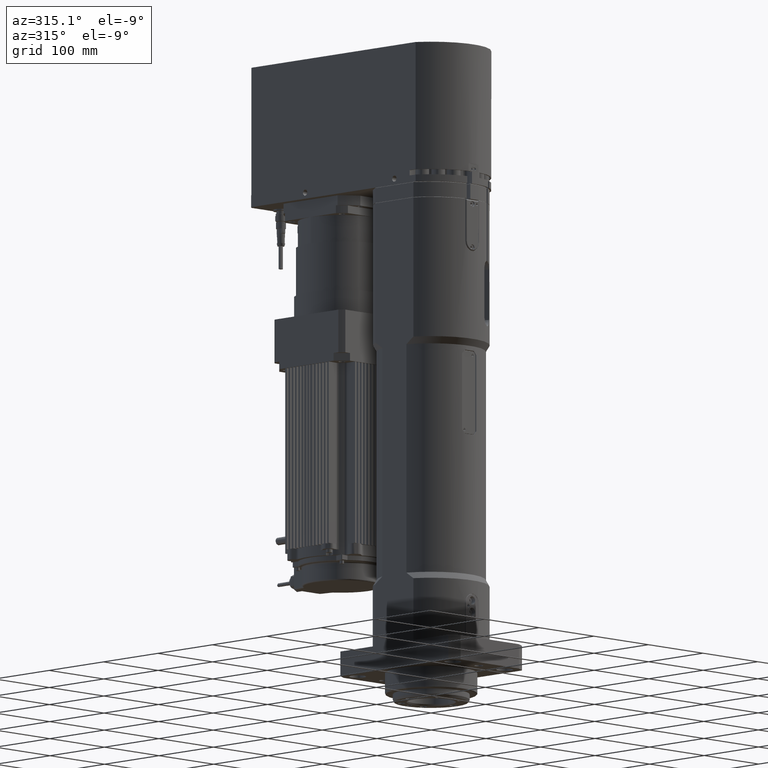
[diagram: clean part render]
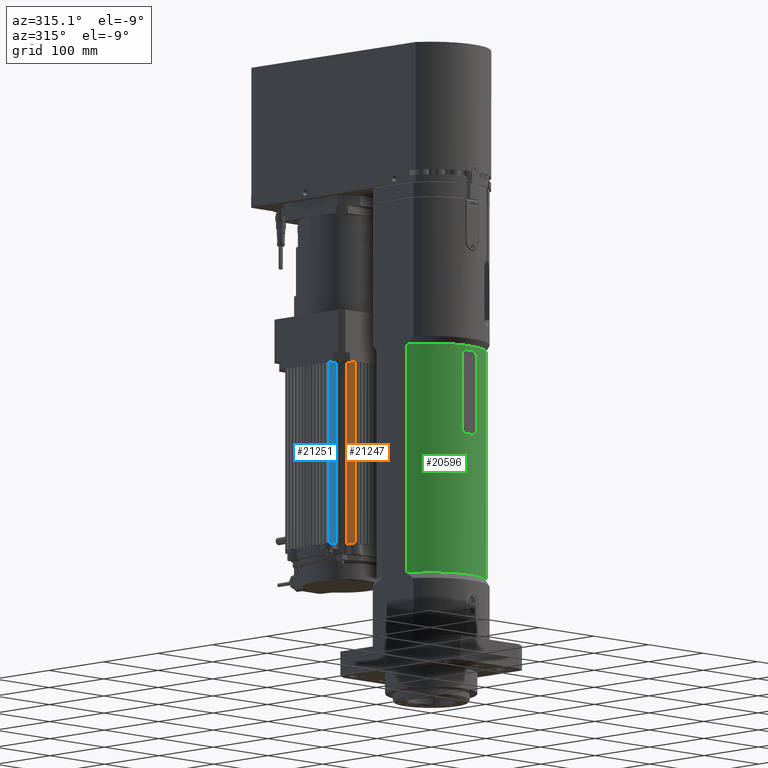
[diagram: same view with three faces highlighted in distinct colors, each labeled with its STEP entity id]
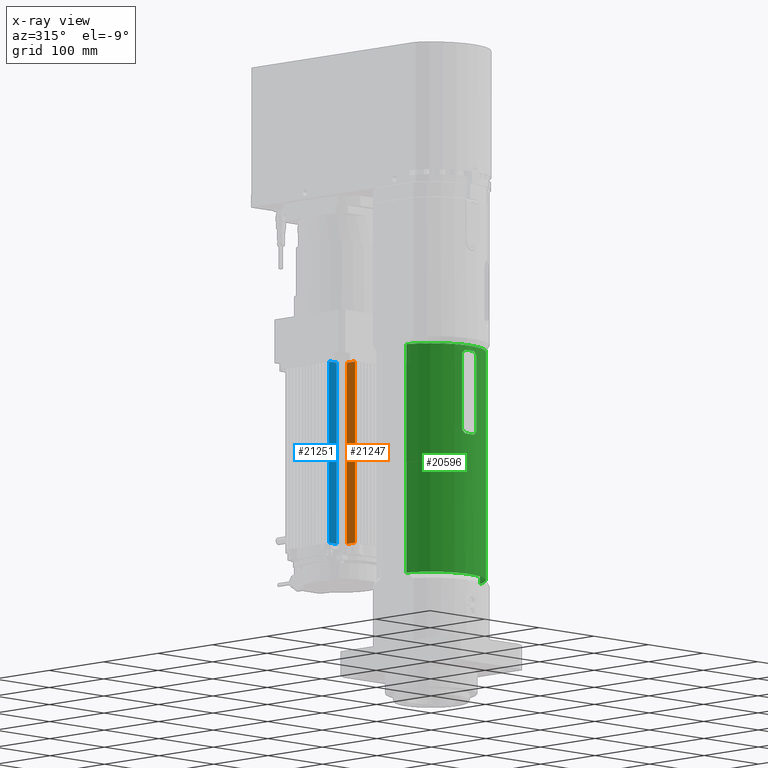
[diagram: x-ray of the same camera — body ghosted, the three highlighted faces saturated]
A machine part, auxiliary view with three faces highlighted in distinct colors.
The next image is the same camera in x-ray (body ghosted, the three faces saturated) — at least one of them is partly hidden behind the body in this view.
Their STEP definitions:

[orange] entity #21247 — the highlighted planar face has unit normal (-1, 0, 0).
#1280=LINE('',#37170,#2954);
#1281=LINE('',#37173,#2955);
#1284=LINE('',#37180,#2958);
#1619=LINE('',#38024,#3293);
#1620=LINE('',#38027,#3294);
#1621=LINE('',#38028,#3295);
#2954=VECTOR('',#28135,3.91076170316298);
#2955=VECTOR('',#28138,8.5039344657575);
#2958=VECTOR('',#28145,2.28169577186255);
#3293=VECTOR('',#29000,238.);
#3294=VECTOR('',#29003,238.);
#3295=VECTOR('',#29004,14.696391940783);
#5539=FACE_OUTER_BOUND('',#7027,.T.);
#7027=EDGE_LOOP('',(#17598,#17599,#17600,#17601,#17602,#17603));
#9341=VERTEX_POINT('',#36536);
#9574=VERTEX_POINT('',#37168);
#9575=VERTEX_POINT('',#37172);
#9576=VERTEX_POINT('',#37176);
#9826=VERTEX_POINT('',#38022);
#9827=VERTEX_POINT('',#38026);
#12090=EDGE_CURVE('',#9574,#9341,#1280,.T.);
#12091=EDGE_CURVE('',#9341,#9575,#1281,.T.);
#12095=EDGE_CURVE('',#9575,#9576,#1284,.T.);
#12520=EDGE_CURVE('',#9826,#9574,#1619,.T.);
#12521=EDGE_CURVE('',#9827,#9576,#1620,.T.);
#12522=EDGE_CURVE('',#9827,#9826,#1621,.T.);
#17598=ORIENTED_EDGE('',*,*,#12521,.T.);
#17599=ORIENTED_EDGE('',*,*,#12095,.F.);
#17600=ORIENTED_EDGE('',*,*,#12091,.F.);
#17601=ORIENTED_EDGE('',*,*,#12090,.F.);
#17602=ORIENTED_EDGE('',*,*,#12520,.F.);
#17603=ORIENTED_EDGE('',*,*,#12522,.F.);
#18921=PLANE('',#23359);
#21247=ADVANCED_FACE('',(#5539),#18921,.T.);
#23359=AXIS2_PLACEMENT_3D('',#38025,#29001,#29002);
#28135=DIRECTION('',(7.64092474937628E-16,1.,2.13267588378177E-53));
#28138=DIRECTION('',(7.64092474937628E-16,1.,2.13267588378177E-53));
#28145=DIRECTION('',(7.64092474937628E-16,1.,2.13267588378177E-53));
#29000=DIRECTION('',(4.6442906133275E-69,2.13267588378177E-53,-1.));
#29001=DIRECTION('center_axis',(-1.,7.64092474937628E-16,1.16513253294586E-68));
#29002=DIRECTION('ref_axis',(7.105427357601E-16,1.,0.));
#29003=DIRECTION('',(4.6442906133275E-69,2.13267588378177E-53,-1.));
#29004=DIRECTION('',(-7.64092474937628E-16,-1.,-2.13267588378177E-53));
#36536=CARTESIAN_POINT('',(-40.,103.910761703164,178.));
#37168=CARTESIAN_POINT('',(-40.,100.000000000001,178.));
#37170=CARTESIAN_POINT('',(-40.,100.000000000001,178.));
#37172=CARTESIAN_POINT('',(-40.,112.414696168921,178.));
#37173=CARTESIAN_POINT('',(-40.,100.000000000001,178.));
#37176=CARTESIAN_POINT('',(-40.,114.696391940784,178.));
#37180=CARTESIAN_POINT('',(-40.,100.000000000001,178.));
#38022=CARTESIAN_POINT('',(-40.,100.000000000001,416.));
#38024=CARTESIAN_POINT('',(-40.,100.000000000001,416.));
#38025=CARTESIAN_POINT('Origin',(-40.,100.000000000001,416.));
#38026=CARTESIAN_POINT('',(-40.,114.696391940784,416.));
#38027=CARTESIAN_POINT('',(-40.,114.696391940784,416.));
#38028=CARTESIAN_POINT('',(-40.,132.000000000001,416.));

[blue] entity #21251 — the highlighted planar face has unit normal (0, -1, -0).
#1291=LINE('',#37204,#2965);
#1292=LINE('',#37206,#2966);
#1293=LINE('',#37209,#2967);
#1624=LINE('',#38040,#3298);
#1625=LINE('',#38043,#3299);
#1626=LINE('',#38044,#3300);
#2965=VECTOR('',#28174,2.28169577186226);
#2966=VECTOR('',#28177,8.50393446575779);
#2967=VECTOR('',#28180,3.91076170316292);
#3298=VECTOR('',#29019,238.);
#3299=VECTOR('',#29022,14.696391940783);
#3300=VECTOR('',#29023,238.);
#5543=FACE_OUTER_BOUND('',#7031,.T.);
#7031=EDGE_LOOP('',(#17624,#17625,#17626,#17627,#17628,#17629));
#9354=VERTEX_POINT('',#36570);
#9582=VERTEX_POINT('',#37198);
#9583=VERTEX_POINT('',#37202);
#9584=VERTEX_POINT('',#37208);
#9830=VERTEX_POINT('',#38038);
#9831=VERTEX_POINT('',#38042);
#12108=EDGE_CURVE('',#9583,#9582,#1291,.T.);
#12109=EDGE_CURVE('',#9582,#9354,#1292,.T.);
#12110=EDGE_CURVE('',#9354,#9584,#1293,.T.);
#12528=EDGE_CURVE('',#9583,#9830,#1624,.T.);
#12529=EDGE_CURVE('',#9831,#9830,#1625,.T.);
#12530=EDGE_CURVE('',#9831,#9584,#1626,.T.);
#17624=ORIENTED_EDGE('',*,*,#12528,.T.);
#17625=ORIENTED_EDGE('',*,*,#12529,.F.);
#17626=ORIENTED_EDGE('',*,*,#12530,.T.);
#17627=ORIENTED_EDGE('',*,*,#12110,.F.);
#17628=ORIENTED_EDGE('',*,*,#12109,.F.);
#17629=ORIENTED_EDGE('',*,*,#12108,.F.);
#18922=PLANE('',#23366);
#21251=ADVANCED_FACE('',(#5543),#18922,.T.);
#23366=AXIS2_PLACEMENT_3D('',#38041,#29020,#29021);
#28174=DIRECTION('',(-1.,-6.97960117929888E-17,-6.13281332467805E-69));
#28177=DIRECTION('',(-1.,-6.97960117929888E-17,-6.13281332467805E-69));
#28180=DIRECTION('',(-1.,-6.97960117929888E-17,-6.13281332467805E-69));
#29019=DIRECTION('',(-4.6442906133275E-69,-2.13267588378177E-53,1.));
#29020=DIRECTION('center_axis',(6.97960117929888E-17,-1.,-2.13267588378177E-53));
#29021=DIRECTION('ref_axis',(-1.,0.,0.));
#29022=DIRECTION('',(1.,6.97960117929888E-17,6.13281332467805E-69));
#29023=DIRECTION('',(4.6442906133275E-69,2.13267588378177E-53,-1.));
#36570=CARTESIAN_POINT('',(-60.0892382968371,124.000000000001,178.));
#37198=CARTESIAN_POINT('',(-51.5853038310793,124.000000000001,178.));
#37202=CARTESIAN_POINT('',(-49.303608059217,124.000000000001,178.));
#37204=CARTESIAN_POINT('',(-48.0234317807464,124.000000000001,178.));
#37206=CARTESIAN_POINT('',(-48.0234317807464,124.000000000001,178.));
#37208=CARTESIAN_POINT('',(-64.,124.000000000001,178.));
#37209=CARTESIAN_POINT('',(-48.0234317807464,124.000000000001,178.));
#38038=CARTESIAN_POINT('',(-49.303608059217,124.000000000001,416.));
#38040=CARTESIAN_POINT('',(-49.303608059217,124.000000000001,416.));
#38041=CARTESIAN_POINT('Origin',(-48.0234317807464,124.000000000001,416.));
#38042=CARTESIAN_POINT('',(-64.,124.000000000001,416.));
#38043=CARTESIAN_POINT('',(-24.0117158903732,124.000000000001,416.));
#38044=CARTESIAN_POINT('',(-64.,124.000000000001,416.));

[green] entity #20596 — the highlighted cylindrical surface (partial cylindrical patch) has radius 71 mm, axis along (0, 0, 1).
#557=LINE('',#34087,#2231);
#561=LINE('',#34120,#2235);
#584=LINE('',#34264,#2258);
#585=LINE('',#34265,#2259);
#2231=VECTOR('',#25480,100.);
#2235=VECTOR('',#25494,100.);
#2258=VECTOR('',#25613,300.);
#2259=VECTOR('',#25614,300.);
#3520=B_SPLINE_CURVE_WITH_KNOTS('',3,(#34090,#34091,#34092,#34093,#34094,
#34095,#34096,#34097,#34098,#34099),.UNSPECIFIED.,.F.,.F.,(4,2,2,2,4),(0.,
0.188411802386185,0.376823604772369,0.567103602888338,0.757383601004307),
 .UNSPECIFIED.);
#3521=B_SPLINE_CURVE_WITH_KNOTS('',3,(#34107,#34108,#34109,#34110,#34111,
#34112,#34113,#34114,#34115,#34116),.UNSPECIFIED.,.F.,.F.,(4,2,2,2,4),(0.754765466642834,
0.945045464758803,1.13532546287477,1.32373726526096,1.51214906764714),
 .UNSPECIFIED.);
#3522=B_SPLINE_CURVE_WITH_KNOTS('',3,(#34124,#34125,#34126,#34127,#34128,
#34129,#34130,#34131,#34132,#34133),.UNSPECIFIED.,.F.,.F.,(4,2,2,2,4),(1.51214906764713,
1.70056087003331,1.8889726724195,2.07925267053546,2.26953266865143),
 .UNSPECIFIED.);
#3523=B_SPLINE_CURVE_WITH_KNOTS('',3,(#34140,#34141,#34142,#34143,#34144,
#34145,#34146,#34147,#34148,#34149),.UNSPECIFIED.,.F.,.F.,(4,2,2,2,4),(-0.757383601004301,
-0.567103602888332,-0.376823604772362,-0.188411802386181,0.),
 .UNSPECIFIED.);
#3909=FACE_BOUND('',#6247,.T.);
#4223=CYLINDRICAL_SURFACE('',#22181,71.);
#4888=FACE_OUTER_BOUND('',#6246,.T.);
#6246=EDGE_LOOP('',(#14604,#14605,#14606,#14607));
#6247=EDGE_LOOP('',(#14608,#14609,#14610,#14611,#14612,#14613,#14614,#14615));
#7458=CIRCLE('',#22132,71.);
#7459=CIRCLE('',#22137,71.);
#7482=CIRCLE('',#22180,71.);
#7483=CIRCLE('',#22182,71.);
#8697=VERTEX_POINT('',#34083);
#8698=VERTEX_POINT('',#34085);
#8699=VERTEX_POINT('',#34089);
#8700=VERTEX_POINT('',#34102);
#8701=VERTEX_POINT('',#34106);
#8702=VERTEX_POINT('',#34119);
#8703=VERTEX_POINT('',#34123);
#8704=VERTEX_POINT('',#34136);
#8734=VERTEX_POINT('',#34251);
#8735=VERTEX_POINT('',#34255);
#8736=VERTEX_POINT('',#34261);
#8737=VERTEX_POINT('',#34262);
#10850=EDGE_CURVE('',#8697,#8698,#557,.T.);
#10851=EDGE_CURVE('',#8697,#8699,#3520,.T.);
#10854=EDGE_CURVE('',#8700,#8699,#7458,.T.);
#10855=EDGE_CURVE('',#8700,#8701,#3521,.T.);
#10857=EDGE_CURVE('',#8702,#8701,#561,.T.);
#10859=EDGE_CURVE('',#8702,#8703,#3522,.T.);
#10861=EDGE_CURVE('',#8704,#8703,#7459,.T.);
#10863=EDGE_CURVE('',#8704,#8698,#3523,.T.);
#10910=EDGE_CURVE('',#8734,#8735,#7482,.T.);
#10912=EDGE_CURVE('',#8736,#8737,#7483,.T.);
#10913=EDGE_CURVE('',#8736,#8735,#584,.T.);
#10914=EDGE_CURVE('',#8734,#8737,#585,.T.);
#14604=ORIENTED_EDGE('',*,*,#10912,.F.);
#14605=ORIENTED_EDGE('',*,*,#10913,.T.);
#14606=ORIENTED_EDGE('',*,*,#10910,.F.);
#14607=ORIENTED_EDGE('',*,*,#10914,.T.);
#14608=ORIENTED_EDGE('',*,*,#10863,.F.);
#14609=ORIENTED_EDGE('',*,*,#10861,.T.);
#14610=ORIENTED_EDGE('',*,*,#10859,.F.);
#14611=ORIENTED_EDGE('',*,*,#10857,.T.);
#14612=ORIENTED_EDGE('',*,*,#10855,.F.);
#14613=ORIENTED_EDGE('',*,*,#10854,.T.);
#14614=ORIENTED_EDGE('',*,*,#10851,.F.);
#14615=ORIENTED_EDGE('',*,*,#10850,.T.);
#20596=ADVANCED_FACE('',(#4888,#3909),#4223,.T.);
#22132=AXIS2_PLACEMENT_3D('',#34104,#25487,#25488);
#22137=AXIS2_PLACEMENT_3D('',#34137,#25501,#25502);
#22180=AXIS2_PLACEMENT_3D('',#34256,#25607,#25608);
#22181=AXIS2_PLACEMENT_3D('',#34260,#25609,#25610);
#22182=AXIS2_PLACEMENT_3D('',#34263,#25611,#25612);
#25480=DIRECTION('',(0.,0.,1.));
#25487=DIRECTION('center_axis',(0.,0.,-1.));
#25488=DIRECTION('ref_axis',(-1.,0.,0.));
#25494=DIRECTION('',(0.,0.,-1.));
#25501=DIRECTION('center_axis',(0.,0.,1.));
#25502=DIRECTION('ref_axis',(-1.,0.,0.));
#25607=DIRECTION('center_axis',(0.,0.,-1.));
#25608=DIRECTION('ref_axis',(-1.,0.,0.));
#25609=DIRECTION('center_axis',(0.,0.,1.));
#25610=DIRECTION('ref_axis',(-1.,0.,0.));
#25611=DIRECTION('center_axis',(0.,0.,1.));
#25612=DIRECTION('ref_axis',(-1.,0.,0.));
#25613=DIRECTION('',(0.,0.,-1.));
#25614=DIRECTION('',(0.,0.,1.));
#34083=CARTESIAN_POINT('',(-13.0000000000001,-69.7997134664606,311.));
#34085=CARTESIAN_POINT('',(-13.0000000000001,-69.7997134664606,411.));
#34087=CARTESIAN_POINT('',(-13.0000000000001,-69.7997134664606,122.));
#34089=CARTESIAN_POINT('',(-8.00000000000001,-70.5478560978291,306.));
#34090=CARTESIAN_POINT('Ctrl Pts',(-13.,-69.7997134664606,311.));
#34091=CARTESIAN_POINT('Ctrl Pts',(-13.,-69.7997134664606,310.371960658713));
#34092=CARTESIAN_POINT('Ctrl Pts',(-12.8744095828624,-69.8234655504188,
309.702909879648));
#34093=CARTESIAN_POINT('Ctrl Pts',(-12.3658664695957,-69.9153209936031,
308.473832546715));
#34094=CARTESIAN_POINT('Ctrl Pts',(-11.9829839411033,-69.9829060972424,
307.913738284868));
#34095=CARTESIAN_POINT('Ctrl Pts',(-11.0981895928636,-70.1286903102816,
307.025311379369));
#34096=CARTESIAN_POINT('Ctrl Pts',(-10.5353496659491,-70.2167689169394,
306.638995190135));
#34097=CARTESIAN_POINT('Ctrl Pts',(-9.30140724545767,-70.3908520544637,
306.126325800676));
#34098=CARTESIAN_POINT('Ctrl Pts',(-8.63022750823384,-70.47638943187,306.));
#34099=CARTESIAN_POINT('Ctrl Pts',(-8.00000000000001,-70.5478560978291,
306.));
#34102=CARTESIAN_POINT('',(7.99999999999999,-70.5478560978291,306.));
#34104=CARTESIAN_POINT('Origin',(0.,0.,306.));
#34106=CARTESIAN_POINT('',(13.,-69.7997134664606,311.));
#34107=CARTESIAN_POINT('Ctrl Pts',(7.99999999999999,-70.5478560978291,306.));
#34108=CARTESIAN_POINT('Ctrl Pts',(8.63022750823382,-70.47638943187,306.));
#34109=CARTESIAN_POINT('Ctrl Pts',(9.30140724545766,-70.3908520544637,306.126325800676));
#34110=CARTESIAN_POINT('Ctrl Pts',(10.5353496659491,-70.2167689169394,306.638995190135));
#34111=CARTESIAN_POINT('Ctrl Pts',(11.0981895928635,-70.1286903102816,307.025311379369));
#34112=CARTESIAN_POINT('Ctrl Pts',(11.9829839411032,-69.9829060972424,307.913738284868));
#34113=CARTESIAN_POINT('Ctrl Pts',(12.3658664695957,-69.9153209936031,308.473832546715));
#34114=CARTESIAN_POINT('Ctrl Pts',(12.8744095828623,-69.8234655504188,309.702909879648));
#34115=CARTESIAN_POINT('Ctrl Pts',(13.,-69.7997134664606,310.371960658713));
#34116=CARTESIAN_POINT('Ctrl Pts',(13.,-69.7997134664606,311.));
#34119=CARTESIAN_POINT('',(13.,-69.7997134664606,411.));
#34120=CARTESIAN_POINT('',(13.,-69.7997134664606,122.));
#34123=CARTESIAN_POINT('',(8.00000000000001,-70.5478560978291,416.));
#34124=CARTESIAN_POINT('Ctrl Pts',(13.,-69.7997134664606,411.));
#34125=CARTESIAN_POINT('Ctrl Pts',(13.,-69.7997134664606,411.628039341287));
#34126=CARTESIAN_POINT('Ctrl Pts',(12.8744095828624,-69.8234655504188,412.297090120352));
#34127=CARTESIAN_POINT('Ctrl Pts',(12.3658664695957,-69.9153209936031,413.526167453285));
#34128=CARTESIAN_POINT('Ctrl Pts',(11.9829839411033,-69.9829060972424,414.086261715132));
#34129=CARTESIAN_POINT('Ctrl Pts',(11.0981895928636,-70.1286903102816,414.974688620631));
#34130=CARTESIAN_POINT('Ctrl Pts',(10.5353496659491,-70.2167689169394,415.361004809865));
#34131=CARTESIAN_POINT('Ctrl Pts',(9.30140724545761,-70.3908520544637,415.873674199324));
#34132=CARTESIAN_POINT('Ctrl Pts',(8.63022750823385,-70.47638943187,416.));
#34133=CARTESIAN_POINT('Ctrl Pts',(8.00000000000002,-70.5478560978291,416.));
#34136=CARTESIAN_POINT('',(-7.99999999999998,-70.5478560978291,416.));
#34137=CARTESIAN_POINT('Origin',(0.,0.,416.));
#34140=CARTESIAN_POINT('Ctrl Pts',(-7.99999999999998,-70.5478560978291,
416.));
#34141=CARTESIAN_POINT('Ctrl Pts',(-8.63022750823381,-70.47638943187,416.));
#34142=CARTESIAN_POINT('Ctrl Pts',(-9.30140724545765,-70.3908520544637,
415.873674199324));
#34143=CARTESIAN_POINT('Ctrl Pts',(-10.5353496659491,-70.2167689169394,
415.361004809865));
#34144=CARTESIAN_POINT('Ctrl Pts',(-11.0981895928635,-70.1286903102816,
414.974688620631));
#34145=CARTESIAN_POINT('Ctrl Pts',(-11.9829839411032,-69.9829060972424,
414.086261715132));
#34146=CARTESIAN_POINT('Ctrl Pts',(-12.3658664695957,-69.9153209936031,
413.526167453285));
#34147=CARTESIAN_POINT('Ctrl Pts',(-12.8744095828624,-69.8234655504188,
412.297090120352));
#34148=CARTESIAN_POINT('Ctrl Pts',(-13.,-69.7997134664606,411.628039341287));
#34149=CARTESIAN_POINT('Ctrl Pts',(-13.,-69.7997134664606,411.));
#34251=CARTESIAN_POINT('',(67.5,-22.017038856304,122.));
#34255=CARTESIAN_POINT('',(-67.5,-22.017038856304,122.));
#34256=CARTESIAN_POINT('Origin',(0.,0.,122.));
#34260=CARTESIAN_POINT('Origin',(0.,0.,122.));
#34261=CARTESIAN_POINT('',(-67.5,-22.017038856304,422.));
#34262=CARTESIAN_POINT('',(67.5,-22.017038856304,422.));
#34263=CARTESIAN_POINT('Origin',(0.,0.,422.));
#34264=CARTESIAN_POINT('',(-67.5,-22.017038856304,122.));
#34265=CARTESIAN_POINT('',(67.5,-22.017038856304,122.));